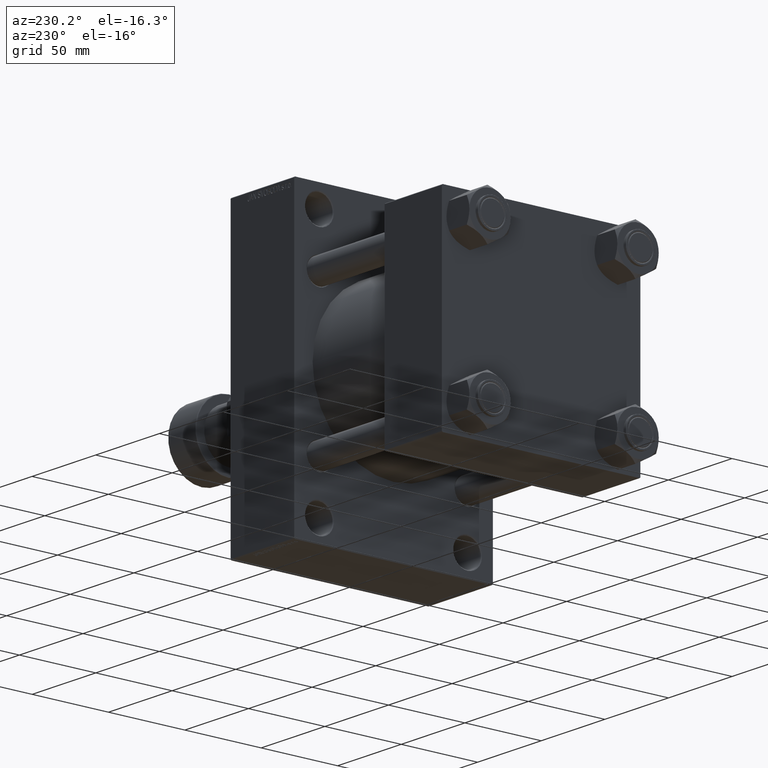
[diagram: clean part render]
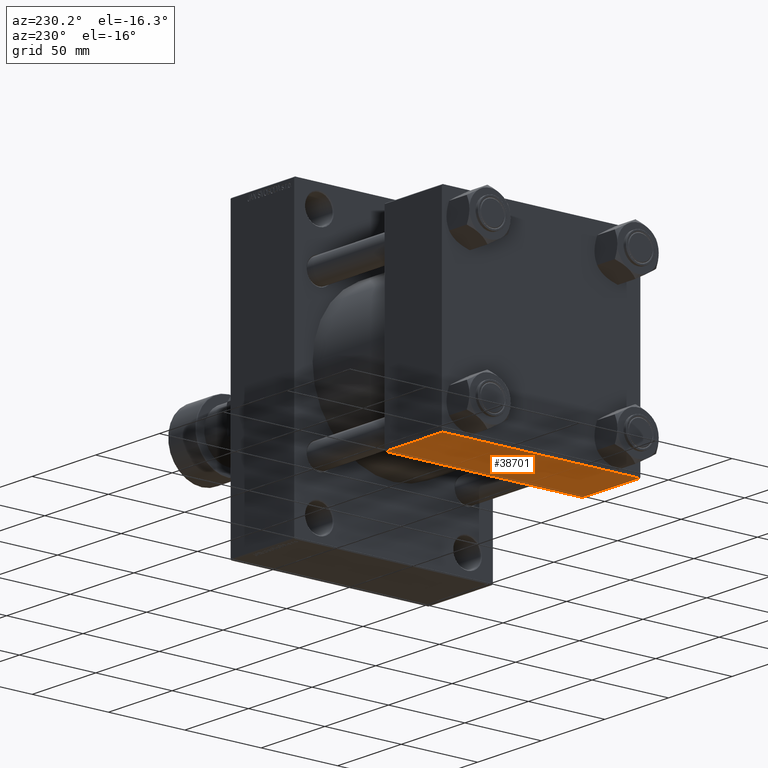
[diagram: same view with one face highlighted and labeled with its STEP entity id]
A machine part, auxiliary view. The second image highlights one B-rep face of the part: STEP entity #38701.
In plain terms, the highlighted planar face has unit normal (0, 0, -1).
Its self-contained STEP definition (entity closure, byte-faithful):
#331 = VECTOR ( 'NONE', #15793, 1000.000000000000000 ) ;
#1895 = DIRECTION ( 'NONE',  ( 0.000000000000000000, -1.000000000000000000, -2.135044278125300850E-16 ) ) ;
#2241 = ORIENTED_EDGE ( 'NONE', *, *, #12166, .T. ) ;
#2735 = CARTESIAN_POINT ( 'NONE',  ( 0.000000000000000000, 64.49999999999997158, -64.99999999999998579 ) ) ;
#5662 = CARTESIAN_POINT ( 'NONE',  ( 0.000000000000000000, -64.49999999999994316, -65.00000000000001421 ) ) ;
#6406 = PLANE ( 'NONE',  #36754 ) ;
#7497 = VERTEX_POINT ( 'NONE', #13735 ) ;
#8305 = DIRECTION ( 'NONE',  ( 0.000000000000000000, -1.000000000000000000, -2.135044278125300850E-16 ) ) ;
#9316 = LINE ( 'NONE', #5662, #26958 ) ;
#10287 = DIRECTION ( 'NONE',  ( 0.000000000000000000, 1.000000000000000000, 2.135044278125301096E-16 ) ) ;
#10367 = EDGE_LOOP ( 'NONE', ( #38060, #40870, #16065, #2241 ) ) ;
#12007 = CARTESIAN_POINT ( 'NONE',  ( 0.000000000000000000, -64.49999999999994316, -65.00000000000001421 ) ) ;
#12166 = EDGE_CURVE ( 'NONE', #32095, #29418, #9316, .T. ) ;
#13086 = LINE ( 'NONE', #16003, #43845 ) ;
#13735 = CARTESIAN_POINT ( 'NONE',  ( 45.00000000000000000, 64.49999999999997158, -64.99999999999998579 ) ) ;
#15793 = DIRECTION ( 'NONE',  ( 1.000000000000000000, 0.000000000000000000, 0.000000000000000000 ) ) ;
#16003 = CARTESIAN_POINT ( 'NONE',  ( 0.000000000000000000, 65.00000000000000000, -64.99999999999998579 ) ) ;
#16065 = ORIENTED_EDGE ( 'NONE', *, *, #45906, .T. ) ;
#22162 = VECTOR ( 'NONE', #8305, 1000.000000000000000 ) ;
#22383 = LINE ( 'NONE', #41080, #331 ) ;
#23374 = CARTESIAN_POINT ( 'NONE',  ( 45.00000000000000000, -64.49999999999994316, -65.00000000000001421 ) ) ;
#26297 = CARTESIAN_POINT ( 'NONE',  ( 45.00000000000000000, 65.00000000000000000, -64.99999999999998579 ) ) ;
#26958 = VECTOR ( 'NONE', #35304, 1000.000000000000000 ) ;
#28751 = DIRECTION ( 'NONE',  ( 0.000000000000000000, 2.135044278125301096E-16, -1.000000000000000000 ) ) ;
#28997 = CARTESIAN_POINT ( 'NONE',  ( 45.00000000000000000, 65.00000000000000000, -64.99999999999998579 ) ) ;
#29418 = VERTEX_POINT ( 'NONE', #12007 ) ;
#32095 = VERTEX_POINT ( 'NONE', #23374 ) ;
#33827 = LINE ( 'NONE', #26297, #22162 ) ;
#35304 = DIRECTION ( 'NONE',  ( -1.000000000000000000, 0.000000000000000000, 0.000000000000000000 ) ) ;
#36754 = AXIS2_PLACEMENT_3D ( 'NONE', #28997, #28751, #10287 ) ;
#38060 = ORIENTED_EDGE ( 'NONE', *, *, #45455, .F. ) ;
#38701 = ADVANCED_FACE ( 'NONE', ( #43352 ), #6406, .T. ) ;
#39143 = EDGE_CURVE ( 'NONE', #45779, #7497, #22383, .T. ) ;
#40870 = ORIENTED_EDGE ( 'NONE', *, *, #39143, .T. ) ;
#41080 = CARTESIAN_POINT ( 'NONE',  ( 45.00000000000000000, 64.49999999999997158, -64.99999999999998579 ) ) ;
#43352 = FACE_OUTER_BOUND ( 'NONE', #10367, .T. ) ;
#43845 = VECTOR ( 'NONE', #1895, 1000.000000000000000 ) ;
#45455 = EDGE_CURVE ( 'NONE', #45779, #29418, #13086, .T. ) ;
#45779 = VERTEX_POINT ( 'NONE', #2735 ) ;
#45906 = EDGE_CURVE ( 'NONE', #7497, #32095, #33827, .T. ) ;